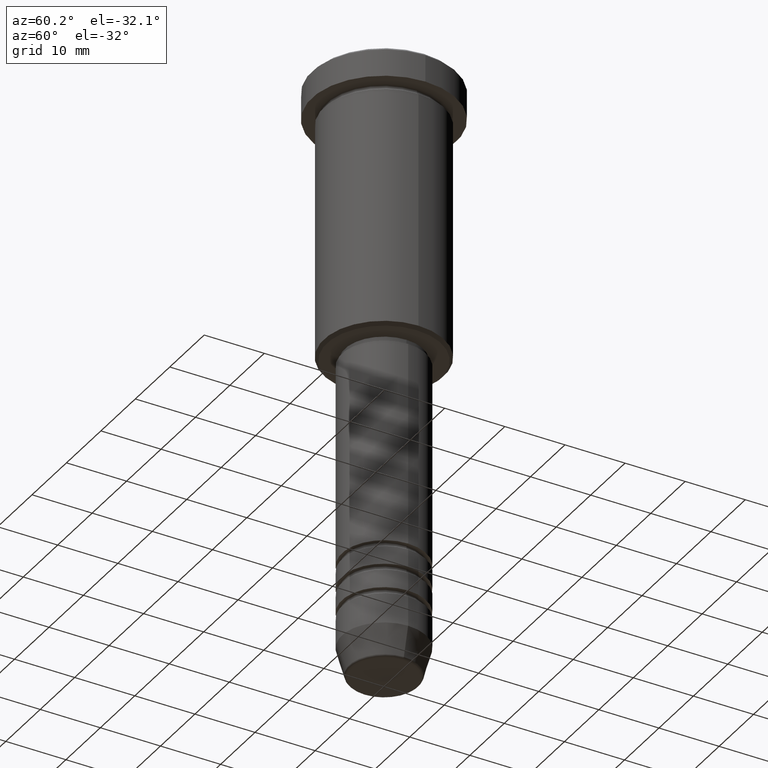
[diagram: clean part render]
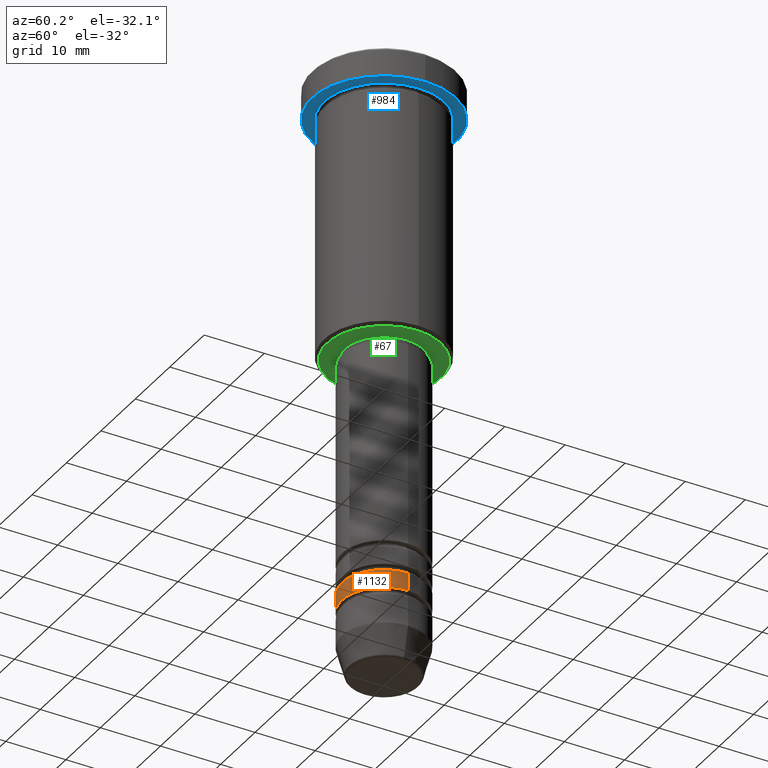
[diagram: same view with three faces highlighted in distinct colors, each labeled with its STEP entity id]
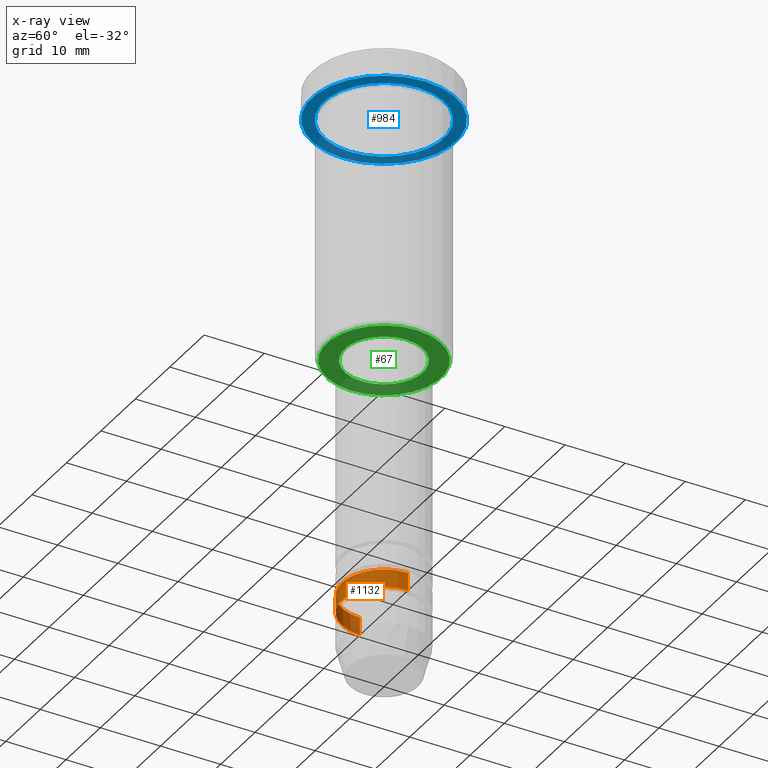
[diagram: x-ray of the same camera — body ghosted, the three highlighted faces saturated]
A machine part, auxiliary view with three faces highlighted in distinct colors.
The next image is the same camera in x-ray (body ghosted, the three faces saturated) — at least one of them is partly hidden behind the body in this view.
Their STEP definitions:

[orange] entity #1132 — the highlighted cylindrical surface (partial cylindrical patch) has radius 7 mm, axis along (-0, -0, 1).
#34 = EDGE_CURVE ( 'NONE', #1162, #415, #616, .T. ) ;
#68 = CARTESIAN_POINT ( 'NONE',  ( -7.000000000000000888, 8.572527594031474176E-16, -88.99999999999998579 ) ) ;
#75 = EDGE_CURVE ( 'NONE', #461, #415, #721, .T. ) ;
#104 = CIRCLE ( 'NONE', #1048, 7.000000000000000888 ) ;
#113 = DIRECTION ( 'NONE',  ( -0.000000000000000000, -0.000000000000000000, 1.000000000000000000 ) ) ;
#143 = DIRECTION ( 'NONE',  ( -0.000000000000000000, -0.000000000000000000, 1.000000000000000000 ) ) ;
#160 = CARTESIAN_POINT ( 'NONE',  ( 0.000000000000000000, 0.000000000000000000, -88.99999999999998579 ) ) ;
#198 = CARTESIAN_POINT ( 'NONE',  ( 7.000000000000000888, 0.000000000000000000, -88.99999999999998579 ) ) ;
#201 = EDGE_LOOP ( 'NONE', ( #1120, #469, #484, #501 ) ) ;
#223 = CARTESIAN_POINT ( 'NONE',  ( -7.000000000000000888, 8.572527594031474176E-16, 0.000000000000000000 ) ) ;
#302 = EDGE_CURVE ( 'NONE', #952, #461, #955, .T. ) ;
#386 = CYLINDRICAL_SURFACE ( 'NONE', #931, 7.000000000000000888 ) ;
#387 = VECTOR ( 'NONE', #143, 1000.000000000000000 ) ;
#415 = VERTEX_POINT ( 'NONE', #1166 ) ;
#437 = DIRECTION ( 'NONE',  ( -0.000000000000000000, -0.000000000000000000, 1.000000000000000000 ) ) ;
#461 = VERTEX_POINT ( 'NONE', #727 ) ;
#469 = ORIENTED_EDGE ( 'NONE', *, *, #1019, .T. ) ;
#484 = ORIENTED_EDGE ( 'NONE', *, *, #34, .T. ) ;
#501 = ORIENTED_EDGE ( 'NONE', *, *, #75, .F. ) ;
#616 = LINE ( 'NONE', #867, #387 ) ;
#636 = DIRECTION ( 'NONE',  ( 1.000000000000000000, 0.000000000000000000, 0.000000000000000000 ) ) ;
#721 = CIRCLE ( 'NONE', #1006, 7.000000000000000000 ) ;
#727 = CARTESIAN_POINT ( 'NONE',  ( -7.000000000000000000, 8.572527594031473190E-16, -86.00000000000000000 ) ) ;
#730 = DIRECTION ( 'NONE',  ( 1.000000000000000000, 0.000000000000000000, 0.000000000000000000 ) ) ;
#850 = FACE_OUTER_BOUND ( 'NONE', #201, .T. ) ;
#867 = CARTESIAN_POINT ( 'NONE',  ( 7.000000000000000888, 0.000000000000000000, 0.000000000000000000 ) ) ;
#931 = AXIS2_PLACEMENT_3D ( 'NONE', #1021, #113, #1041 ) ;
#952 = VERTEX_POINT ( 'NONE', #68 ) ;
#955 = LINE ( 'NONE', #223, #1007 ) ;
#978 = DIRECTION ( 'NONE',  ( -0.000000000000000000, -0.000000000000000000, 1.000000000000000000 ) ) ;
#1006 = AXIS2_PLACEMENT_3D ( 'NONE', #1079, #1013, #636 ) ;
#1007 = VECTOR ( 'NONE', #978, 1000.000000000000000 ) ;
#1013 = DIRECTION ( 'NONE',  ( -0.000000000000000000, -0.000000000000000000, 1.000000000000000000 ) ) ;
#1019 = EDGE_CURVE ( 'NONE', #952, #1162, #104, .T. ) ;
#1021 = CARTESIAN_POINT ( 'NONE',  ( 0.000000000000000000, 0.000000000000000000, 0.000000000000000000 ) ) ;
#1041 = DIRECTION ( 'NONE',  ( 1.000000000000000000, 0.000000000000000000, 0.000000000000000000 ) ) ;
#1048 = AXIS2_PLACEMENT_3D ( 'NONE', #160, #437, #730 ) ;
#1079 = CARTESIAN_POINT ( 'NONE',  ( 0.000000000000000000, 0.000000000000000000, -86.00000000000000000 ) ) ;
#1120 = ORIENTED_EDGE ( 'NONE', *, *, #302, .F. ) ;
#1132 = ADVANCED_FACE ( 'NONE', ( #850 ), #386, .T. ) ;
#1162 = VERTEX_POINT ( 'NONE', #198 ) ;
#1166 = CARTESIAN_POINT ( 'NONE',  ( 7.000000000000000000, 0.000000000000000000, -86.00000000000000000 ) ) ;

[blue] entity #984 — the highlighted planar face has unit normal (0, 0, -1).
#7 = CARTESIAN_POINT ( 'NONE',  ( 12.00000000000000000, 0.000000000000000000, -5.000000000000000000 ) ) ;
#21 = EDGE_CURVE ( 'NONE', #1174, #436, #27, .T. ) ;
#27 = CIRCLE ( 'NONE', #1065, 12.00000000000000000 ) ;
#39 = AXIS2_PLACEMENT_3D ( 'NONE', #1087, #245, #628 ) ;
#53 = DIRECTION ( 'NONE',  ( -1.000000000000000000, 0.000000000000000000, 0.000000000000000000 ) ) ;
#61 = EDGE_CURVE ( 'NONE', #436, #1174, #869, .T. ) ;
#139 = ORIENTED_EDGE ( 'NONE', *, *, #21, .F. ) ;
#141 = DIRECTION ( 'NONE',  ( -1.000000000000000000, 0.000000000000000000, -0.000000000000000000 ) ) ;
#176 = AXIS2_PLACEMENT_3D ( 'NONE', #597, #1164, #53 ) ;
#193 = CIRCLE ( 'NONE', #176, 10.00000000000000000 ) ;
#218 = DIRECTION ( 'NONE',  ( 1.000000000000000000, 0.000000000000000000, 0.000000000000000000 ) ) ;
#245 = DIRECTION ( 'NONE',  ( -0.000000000000000000, -0.000000000000000000, 1.000000000000000000 ) ) ;
#272 = ORIENTED_EDGE ( 'NONE', *, *, #462, .T. ) ;
#303 = DIRECTION ( 'NONE',  ( -0.000000000000000000, -0.000000000000000000, 1.000000000000000000 ) ) ;
#432 = FACE_OUTER_BOUND ( 'NONE', #492, .T. ) ;
#436 = VERTEX_POINT ( 'NONE', #7 ) ;
#444 = VERTEX_POINT ( 'NONE', #710 ) ;
#458 = DIRECTION ( 'NONE',  ( 1.000000000000000000, 0.000000000000000000, 0.000000000000000000 ) ) ;
#462 = EDGE_CURVE ( 'NONE', #531, #444, #604, .T. ) ;
#492 = EDGE_LOOP ( 'NONE', ( #610, #139 ) ) ;
#523 = CARTESIAN_POINT ( 'NONE',  ( 0.000000000000000000, 0.000000000000000000, -5.000000000000000000 ) ) ;
#527 = FACE_BOUND ( 'NONE', #652, .T. ) ;
#531 = VERTEX_POINT ( 'NONE', #1023 ) ;
#597 = CARTESIAN_POINT ( 'NONE',  ( 0.000000000000000000, 0.000000000000000000, -5.000000000000000000 ) ) ;
#604 = CIRCLE ( 'NONE', #39, 10.00000000000000000 ) ;
#610 = ORIENTED_EDGE ( 'NONE', *, *, #61, .F. ) ;
#628 = DIRECTION ( 'NONE',  ( -1.000000000000000000, 0.000000000000000000, 0.000000000000000000 ) ) ;
#652 = EDGE_LOOP ( 'NONE', ( #272, #901 ) ) ;
#679 = AXIS2_PLACEMENT_3D ( 'NONE', #1061, #974, #141 ) ;
#694 = EDGE_CURVE ( 'NONE', #444, #531, #193, .T. ) ;
#710 = CARTESIAN_POINT ( 'NONE',  ( 10.00000000000000000, 1.224646799147353256E-15, -4.999999999999999112 ) ) ;
#762 = CARTESIAN_POINT ( 'NONE',  ( -12.00000000000000000, 1.469576158976823947E-15, -5.000000000000000000 ) ) ;
#777 = AXIS2_PLACEMENT_3D ( 'NONE', #523, #1110, #458 ) ;
#809 = PLANE ( 'NONE',  #679 ) ;
#869 = CIRCLE ( 'NONE', #777, 12.00000000000000000 ) ;
#901 = ORIENTED_EDGE ( 'NONE', *, *, #694, .T. ) ;
#962 = CARTESIAN_POINT ( 'NONE',  ( 0.000000000000000000, 0.000000000000000000, -5.000000000000000000 ) ) ;
#974 = DIRECTION ( 'NONE',  ( 0.000000000000000000, 0.000000000000000000, -1.000000000000000000 ) ) ;
#984 = ADVANCED_FACE ( 'NONE', ( #527, #432 ), #809, .T. ) ;
#1023 = CARTESIAN_POINT ( 'NONE',  ( -10.00000000000000000, 0.000000000000000000, -4.999999999999999112 ) ) ;
#1061 = CARTESIAN_POINT ( 'NONE',  ( 0.000000000000000000, 12.00000000000000000, -5.000000000000000000 ) ) ;
#1065 = AXIS2_PLACEMENT_3D ( 'NONE', #962, #303, #218 ) ;
#1087 = CARTESIAN_POINT ( 'NONE',  ( 0.000000000000000000, 0.000000000000000000, -5.000000000000000000 ) ) ;
#1110 = DIRECTION ( 'NONE',  ( -0.000000000000000000, -0.000000000000000000, 1.000000000000000000 ) ) ;
#1164 = DIRECTION ( 'NONE',  ( -0.000000000000000000, -0.000000000000000000, 1.000000000000000000 ) ) ;
#1174 = VERTEX_POINT ( 'NONE', #762 ) ;

[green] entity #67 — the highlighted planar face has unit normal (0, 0, -1).
#2 = PLANE ( 'NONE',  #236 ) ;
#8 = CARTESIAN_POINT ( 'NONE',  ( 0.000000000000000000, 0.000000000000000000, -46.00000000000000000 ) ) ;
#67 = ADVANCED_FACE ( 'NONE', ( #451, #718 ), #2, .T. ) ;
#105 = EDGE_CURVE ( 'NONE', #184, #120, #482, .T. ) ;
#120 = VERTEX_POINT ( 'NONE', #357 ) ;
#127 = EDGE_CURVE ( 'NONE', #560, #582, #338, .T. ) ;
#161 = EDGE_LOOP ( 'NONE', ( #1069, #1133 ) ) ;
#184 = VERTEX_POINT ( 'NONE', #999 ) ;
#236 = AXIS2_PLACEMENT_3D ( 'NONE', #897, #268, #834 ) ;
#260 = DIRECTION ( 'NONE',  ( -0.000000000000000000, -0.000000000000000000, 1.000000000000000000 ) ) ;
#268 = DIRECTION ( 'NONE',  ( 0.000000000000000000, 0.000000000000000000, -1.000000000000000000 ) ) ;
#332 = DIRECTION ( 'NONE',  ( -0.000000000000000000, -0.000000000000000000, 1.000000000000000000 ) ) ;
#338 = CIRCLE ( 'NONE', #1078, 6.500000000000000000 ) ;
#357 = CARTESIAN_POINT ( 'NONE',  ( -9.499999999999980460, 1.194030629168668089E-15, -46.00000000000000000 ) ) ;
#359 = CARTESIAN_POINT ( 'NONE',  ( 0.000000000000000000, 0.000000000000000000, -46.00000000000000000 ) ) ;
#365 = CARTESIAN_POINT ( 'NONE',  ( 0.000000000000000000, 0.000000000000000000, -46.00000000000000000 ) ) ;
#384 = AXIS2_PLACEMENT_3D ( 'NONE', #365, #829, #548 ) ;
#446 = DIRECTION ( 'NONE',  ( 0.000000000000000000, 0.000000000000000000, -1.000000000000000000 ) ) ;
#451 = FACE_OUTER_BOUND ( 'NONE', #771, .T. ) ;
#454 = EDGE_CURVE ( 'NONE', #582, #560, #620, .T. ) ;
#482 = CIRCLE ( 'NONE', #384, 9.499999999999980460 ) ;
#548 = DIRECTION ( 'NONE',  ( -1.000000000000000000, 0.000000000000000000, 0.000000000000000000 ) ) ;
#551 = ORIENTED_EDGE ( 'NONE', *, *, #105, .T. ) ;
#560 = VERTEX_POINT ( 'NONE', #1115 ) ;
#582 = VERTEX_POINT ( 'NONE', #662 ) ;
#620 = CIRCLE ( 'NONE', #781, 6.500000000000000000 ) ;
#646 = DIRECTION ( 'NONE',  ( 1.000000000000000000, 0.000000000000000000, 0.000000000000000000 ) ) ;
#662 = CARTESIAN_POINT ( 'NONE',  ( -6.500000000000000000, 7.960204194457795477E-16, -46.00000000000000000 ) ) ;
#667 = AXIS2_PLACEMENT_3D ( 'NONE', #359, #446, #736 ) ;
#716 = DIRECTION ( 'NONE',  ( 1.000000000000000000, 0.000000000000000000, 0.000000000000000000 ) ) ;
#718 = FACE_BOUND ( 'NONE', #161, .T. ) ;
#736 = DIRECTION ( 'NONE',  ( -1.000000000000000000, 0.000000000000000000, 0.000000000000000000 ) ) ;
#771 = EDGE_LOOP ( 'NONE', ( #551, #827 ) ) ;
#781 = AXIS2_PLACEMENT_3D ( 'NONE', #986, #332, #716 ) ;
#827 = ORIENTED_EDGE ( 'NONE', *, *, #1042, .T. ) ;
#829 = DIRECTION ( 'NONE',  ( 0.000000000000000000, 0.000000000000000000, -1.000000000000000000 ) ) ;
#834 = DIRECTION ( 'NONE',  ( -1.000000000000000000, 0.000000000000000000, -0.000000000000000000 ) ) ;
#897 = CARTESIAN_POINT ( 'NONE',  ( 0.000000000000000000, 9.999999999999998224, -46.00000000000000000 ) ) ;
#986 = CARTESIAN_POINT ( 'NONE',  ( 0.000000000000000000, 0.000000000000000000, -46.00000000000000000 ) ) ;
#999 = CARTESIAN_POINT ( 'NONE',  ( 9.499999999999980460, 0.000000000000000000, -46.00000000000000000 ) ) ;
#1042 = EDGE_CURVE ( 'NONE', #120, #184, #1178, .T. ) ;
#1069 = ORIENTED_EDGE ( 'NONE', *, *, #127, .T. ) ;
#1078 = AXIS2_PLACEMENT_3D ( 'NONE', #8, #260, #646 ) ;
#1115 = CARTESIAN_POINT ( 'NONE',  ( 6.500000000000000000, 0.000000000000000000, -46.00000000000000000 ) ) ;
#1133 = ORIENTED_EDGE ( 'NONE', *, *, #454, .T. ) ;
#1178 = CIRCLE ( 'NONE', #667, 9.499999999999980460 ) ;